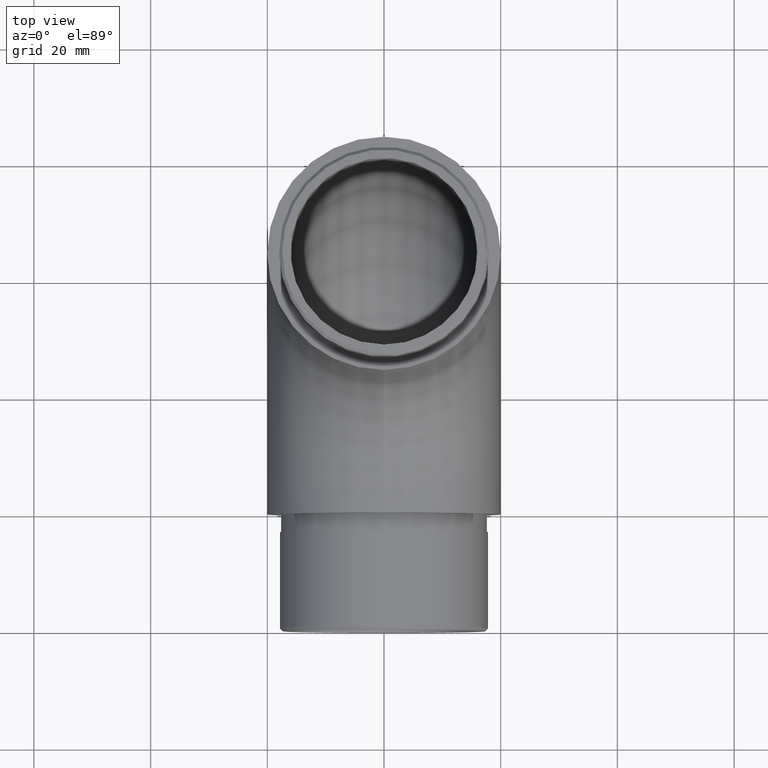
[diagram: clean part render]
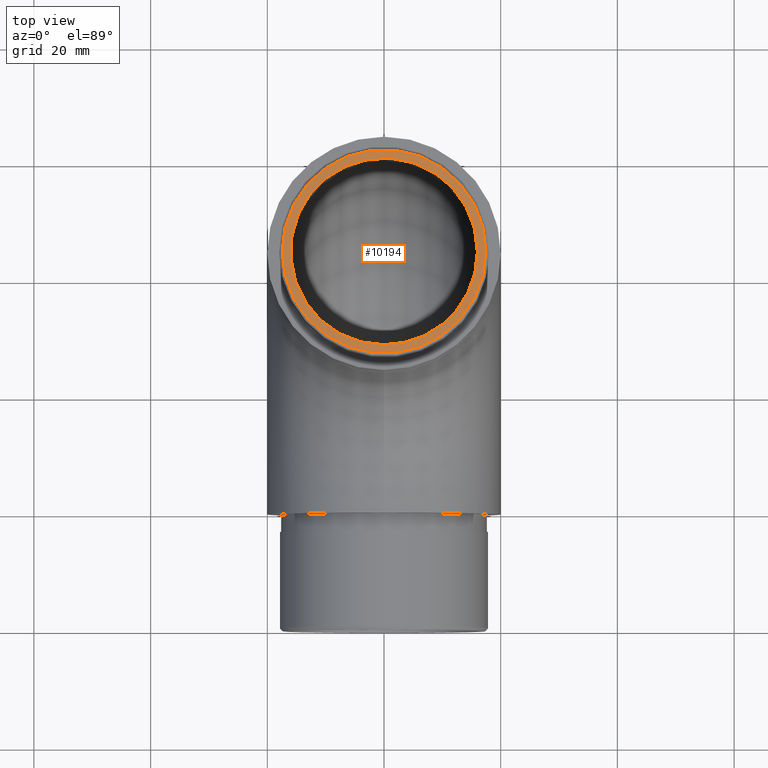
[diagram: same view with one face highlighted and labeled with its STEP entity id]
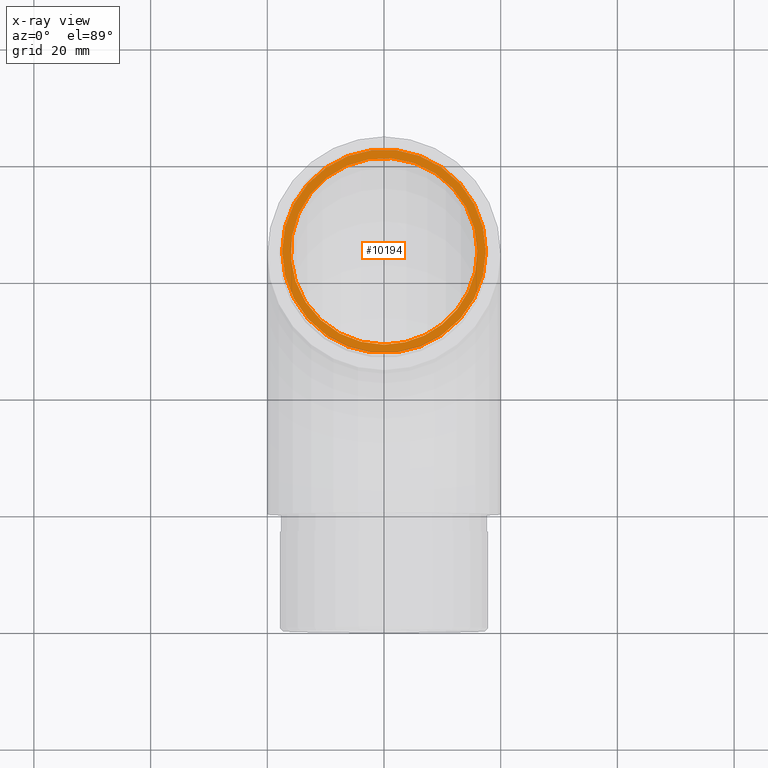
[diagram: x-ray of the same camera — body ghosted, the highlighted face saturated]
A machine part, top view. The second image highlights one B-rep face of the part: STEP entity #10194.
The next image is the same camera in x-ray: the body ghosted, the highlighted face saturated — about 0% of this face is hidden behind the body in this view.
In plain terms, the highlighted planar face has unit normal (0, 0, 1).
Its self-contained STEP definition (entity closure, byte-faithful):
#216 = DIRECTION ( 'NONE',  ( 0.0000000000000000000, 0.0000000000000000000, 1.000000000000000000 ) ) ;
#667 = DIRECTION ( 'NONE',  ( 1.000000000000000000, 0.0000000000000000000, -0.0000000000000000000 ) ) ;
#1442 = ORIENTED_EDGE ( 'NONE', *, *, #11989, .T. ) ;
#2091 = AXIS2_PLACEMENT_3D ( 'NONE', #13047, #6990, #667 ) ;
#2935 = EDGE_LOOP ( 'NONE', ( #1442 ) ) ;
#3221 = FACE_BOUND ( 'NONE', #5354, .T. ) ;
#3362 = CIRCLE ( 'NONE', #12414, 17.45000000000002100 ) ;
#3741 = AXIS2_PLACEMENT_3D ( 'NONE', #9581, #9485, #11578 ) ;
#4383 = DIRECTION ( 'NONE',  ( 1.000000000000000000, 0.0000000000000000000, 0.0000000000000000000 ) ) ;
#5354 = EDGE_LOOP ( 'NONE', ( #7533 ) ) ;
#5363 = CARTESIAN_POINT ( 'NONE',  ( 17.45000000000002100, 43.99999999999998600, 84.00000000000000000 ) ) ;
#6584 = VERTEX_POINT ( 'NONE', #5363 ) ;
#6942 = CIRCLE ( 'NONE', #3741, 15.99999999999999600 ) ;
#6990 = DIRECTION ( 'NONE',  ( 0.0000000000000000000, 0.0000000000000000000, 1.000000000000000000 ) ) ;
#7429 = CARTESIAN_POINT ( 'NONE',  ( 15.99999999999999600, 43.99999999999998600, 84.00000000000000000 ) ) ;
#7533 = ORIENTED_EDGE ( 'NONE', *, *, #9985, .F. ) ;
#8386 = FACE_OUTER_BOUND ( 'NONE', #2935, .T. ) ;
#9485 = DIRECTION ( 'NONE',  ( 0.0000000000000000000, 0.0000000000000000000, 1.000000000000000000 ) ) ;
#9581 = CARTESIAN_POINT ( 'NONE',  ( 0.0000000000000000000, 43.99999999999998600, 84.00000000000000000 ) ) ;
#9985 = EDGE_CURVE ( 'NONE', #12604, #12604, #6942, .T. ) ;
#10194 = ADVANCED_FACE ( 'NONE', ( #8386, #3221 ), #13179, .T. ) ;
#11578 = DIRECTION ( 'NONE',  ( 1.000000000000000000, 0.0000000000000000000, 0.0000000000000000000 ) ) ;
#11989 = EDGE_CURVE ( 'NONE', #6584, #6584, #3362, .T. ) ;
#12414 = AXIS2_PLACEMENT_3D ( 'NONE', #12717, #216, #4383 ) ;
#12604 = VERTEX_POINT ( 'NONE', #7429 ) ;
#12717 = CARTESIAN_POINT ( 'NONE',  ( 0.0000000000000000000, 43.99999999999998600, 84.00000000000000000 ) ) ;
#13047 = CARTESIAN_POINT ( 'NONE',  ( 0.0000000000000000000, 43.99999999999998600, 84.00000000000000000 ) ) ;
#13179 = PLANE ( 'NONE',  #2091 ) ;